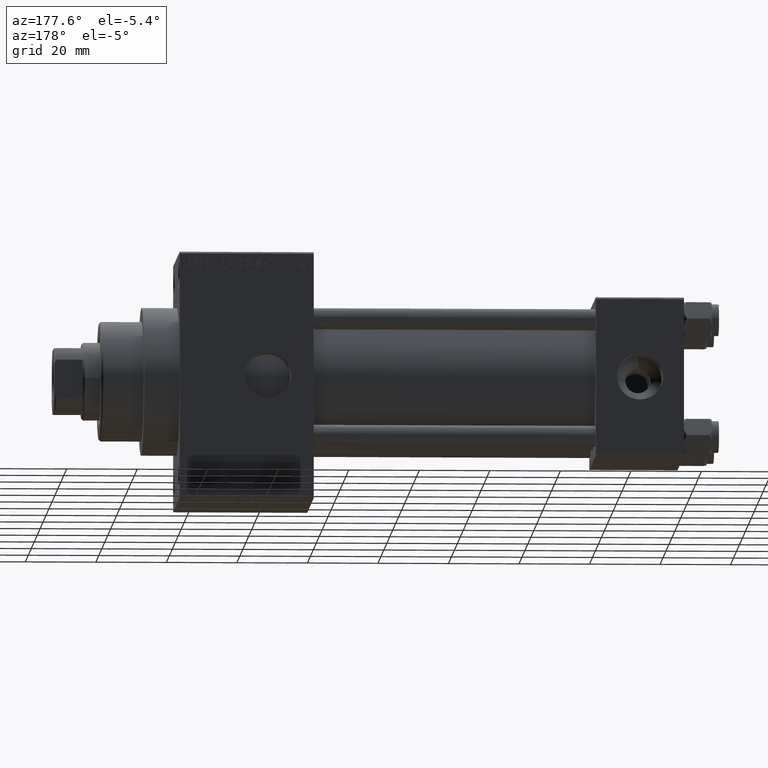
[diagram: clean part render]
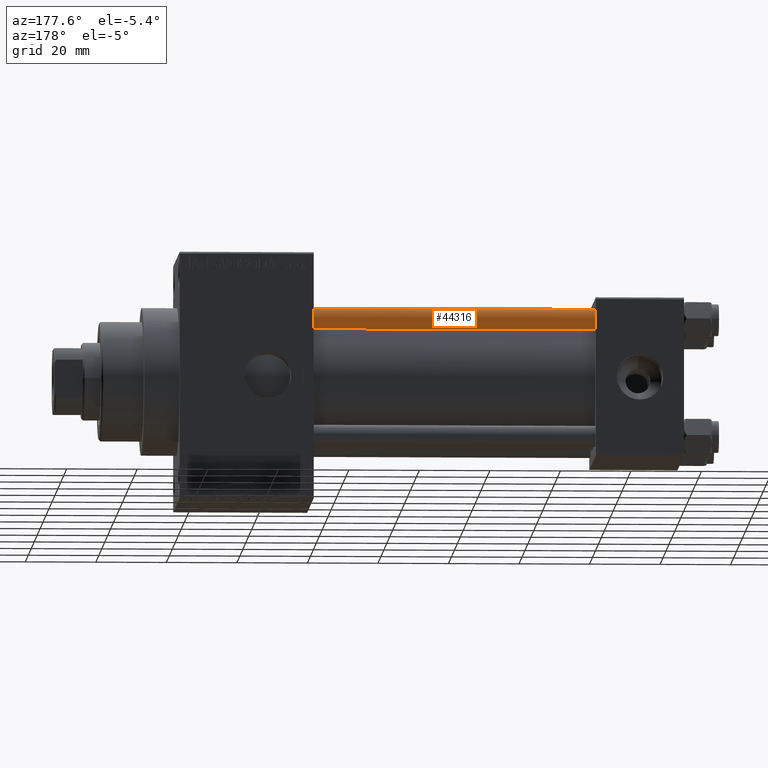
[diagram: same view with one face highlighted and labeled with its STEP entity id]
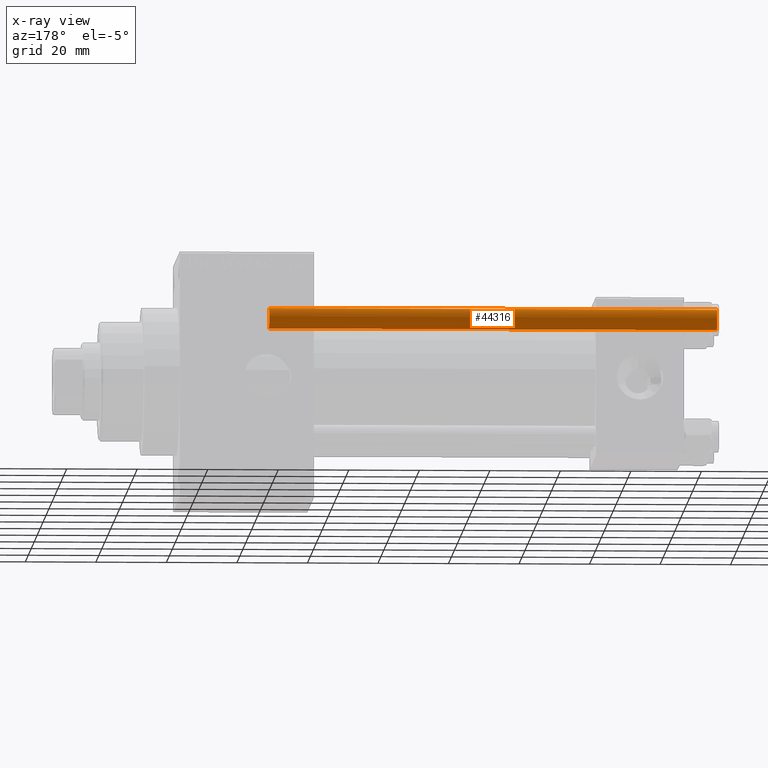
[diagram: x-ray of the same camera — body ghosted, the highlighted face saturated]
A machine part, auxiliary view. The second image highlights one B-rep face of the part: STEP entity #44316.
The next image is the same camera in x-ray: the body ghosted, the highlighted face saturated — about 0% of this face is hidden behind the body in this view.
In plain terms, the highlighted cylindrical surface (edge-blend (fillet) strip) has radius 3 mm, axis along (-1, -0, 0).
Its self-contained STEP definition (entity closure, byte-faithful):
#1594 = VERTEX_POINT ( 'NONE', #28274 ) ;
#1602 = CARTESIAN_POINT ( 'NONE',  ( -3.000000000000000444, 0.000000000000000000, 0.5000000000000281997 ) ) ;
#4904 = ORIENTED_EDGE ( 'NONE', *, *, #13228, .T. ) ;
#9522 = CIRCLE ( 'NONE', #15870, 3.000000000000000444 ) ;
#10432 = DIRECTION ( 'NONE',  ( -0.000000000000000000, -0.000000000000000000, -1.000000000000000000 ) ) ;
#11415 = EDGE_LOOP ( 'NONE', ( #4904, #26192, #25944, #31553 ) ) ;
#11646 = VECTOR ( 'NONE', #44449, 1000.000000000000000 ) ;
#13228 = EDGE_CURVE ( 'NONE', #1594, #36444, #47327, .T. ) ;
#14393 = CARTESIAN_POINT ( 'NONE',  ( 0.000000000000000000, 0.000000000000000000, 128.0000000000000000 ) ) ;
#14951 = VERTEX_POINT ( 'NONE', #43304 ) ;
#15157 = CARTESIAN_POINT ( 'NONE',  ( 3.000000000000000444, 3.673940397442060361E-16, 128.0000000000000000 ) ) ;
#15870 = AXIS2_PLACEMENT_3D ( 'NONE', #43567, #17004, #34912 ) ;
#16465 = EDGE_CURVE ( 'NONE', #36444, #14951, #36752, .T. ) ;
#17004 = DIRECTION ( 'NONE',  ( -0.000000000000000000, -0.000000000000000000, 1.000000000000000000 ) ) ;
#17427 = DIRECTION ( 'NONE',  ( -0.000000000000000000, -0.000000000000000000, -1.000000000000000000 ) ) ;
#17824 = EDGE_CURVE ( 'NONE', #1594, #45847, #25112, .T. ) ;
#21837 = FACE_OUTER_BOUND ( 'NONE', #11415, .T. ) ;
#25112 = LINE ( 'NONE', #48187, #48173 ) ;
#25924 = AXIS2_PLACEMENT_3D ( 'NONE', #42936, #31511, #46389 ) ;
#25944 = ORIENTED_EDGE ( 'NONE', *, *, #26860, .T. ) ;
#26192 = ORIENTED_EDGE ( 'NONE', *, *, #16465, .T. ) ;
#26860 = EDGE_CURVE ( 'NONE', #14951, #45847, #9522, .T. ) ;
#28274 = CARTESIAN_POINT ( 'NONE',  ( -3.000000000000000444, 0.000000000000000000, 127.4999999999999716 ) ) ;
#31511 = DIRECTION ( 'NONE',  ( 0.000000000000000000, 0.000000000000000000, -1.000000000000000000 ) ) ;
#31553 = ORIENTED_EDGE ( 'NONE', *, *, #17824, .F. ) ;
#32531 = DIRECTION ( 'NONE',  ( -1.000000000000000000, 0.000000000000000000, 0.000000000000000000 ) ) ;
#34912 = DIRECTION ( 'NONE',  ( 1.000000000000000000, 0.000000000000000000, 0.000000000000000000 ) ) ;
#36444 = VERTEX_POINT ( 'NONE', #45067 ) ;
#36752 = LINE ( 'NONE', #15157, #11646 ) ;
#42936 = CARTESIAN_POINT ( 'NONE',  ( 0.000000000000000000, 0.000000000000000000, 127.4999999999999716 ) ) ;
#43304 = CARTESIAN_POINT ( 'NONE',  ( 3.000000000000000444, 3.673940397442060361E-16, 0.5000000000000281997 ) ) ;
#43567 = CARTESIAN_POINT ( 'NONE',  ( 0.000000000000000000, 0.000000000000000000, 0.5000000000000281997 ) ) ;
#44316 = ADVANCED_FACE ( 'NONE', ( #21837 ), #48397, .T. ) ;
#44449 = DIRECTION ( 'NONE',  ( -0.000000000000000000, -0.000000000000000000, -1.000000000000000000 ) ) ;
#45067 = CARTESIAN_POINT ( 'NONE',  ( 3.000000000000000444, 3.673940397442060361E-16, 127.4999999999999716 ) ) ;
#45847 = VERTEX_POINT ( 'NONE', #1602 ) ;
#46389 = DIRECTION ( 'NONE',  ( 1.000000000000000000, 0.000000000000000000, 0.000000000000000000 ) ) ;
#46605 = AXIS2_PLACEMENT_3D ( 'NONE', #14393, #10432, #32531 ) ;
#47327 = CIRCLE ( 'NONE', #25924, 3.000000000000000444 ) ;
#48173 = VECTOR ( 'NONE', #17427, 1000.000000000000000 ) ;
#48187 = CARTESIAN_POINT ( 'NONE',  ( -3.000000000000000444, 0.000000000000000000, 128.0000000000000000 ) ) ;
#48397 = CYLINDRICAL_SURFACE ( 'NONE', #46605, 3.000000000000000444 ) ;